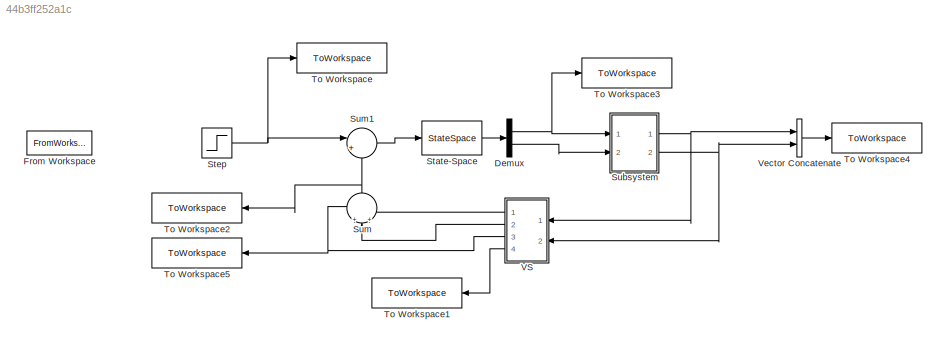
MODEL slx_44b3ff252a1c
KIND model
CONFIG AbsTol = auto
CONFIG EnableMultiTasking = off
CONFIG FixedStep = auto
CONFIG MaxStep = auto
CONFIG MinStep = auto
CONFIG RelTol = 1e-3
CONFIG SampleTimeConstraint = Unconstrained
CONFIG SolverName = VariableStepAuto
CONFIG StartTime = 0.0
CONFIG StopTime = T
BLOCK [Demux] Demux
  Outputs = 2
  Ports = [1, 2]
BLOCK [FromWorkspace] From Workspace
  Commented = on
  SampleTime = 0.0001
  VariableName = disturb
BLOCK [StateSpace] State-Space
  A = [0 1; -b -a]
  B = [0; 1]
  C = eye(2)
  D = zeros(2, 1)
  InitialCondition = [0 0]
  Ports = [1, 1]
BLOCK [Step] Step
  After = dist
  SampleTime = ss_st
  ZeroCross = off
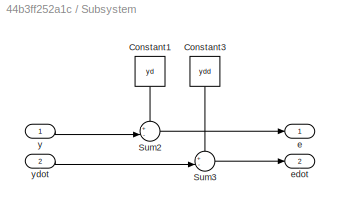
BLOCK [SubSystem] Subsystem
  Ports = [2, 2]
  RequestExecContextInheritance = off
BLOCK [Constant] Subsystem/Constant1
  NameLocation = left
  Value = yd
BLOCK [Constant] Subsystem/Constant3
  NameLocation = left
  Value = ydd
BLOCK [Sum] Subsystem/Sum2
  Inputs = +-|
  Ports = [2, 1]
BLOCK [Sum] Subsystem/Sum3
  Inputs = +-|
  Ports = [2, 1]
BLOCK [Outport] Subsystem/e
BLOCK [Outport] Subsystem/edot
  Port = 2
BLOCK [Inport] Subsystem/y
BLOCK [Inport] Subsystem/ydot
  Port = 2
BLOCK [Sum] Sum
  Inputs = +|+|+
  NameLocation = right
  Ports = [3, 1]
BLOCK [Sum] Sum1
  Inputs = |++
  Ports = [2, 1]
BLOCK [ToWorkspace] To Workspace
  FixptAsFi = on
  MaxDataPoints = inf
  Ports = [1]
  SampleTime = -1
  SaveFormat = Timeseries
  VariableName = disturbance
BLOCK [ToWorkspace] To Workspace1
  FixptAsFi = on
  MaxDataPoints = inf
  NameLocation = top
  Ports = [1]
  SampleTime = -1
  SaveFormat = Timeseries
  VariableName = ss
BLOCK [ToWorkspace] To Workspace2
  FixptAsFi = on
  MaxDataPoints = inf
  NameLocation = top
  Ports = [1]
  SampleTime = -1
  SaveFormat = Timeseries
  VariableName = input
BLOCK [ToWorkspace] To Workspace3
  FixptAsFi = on
  MaxDataPoints = inf
  Ports = [1]
  SampleTime = -1
  SaveFormat = Timeseries
  VariableName = y
BLOCK [ToWorkspace] To Workspace4
  FixptAsFi = on
  MaxDataPoints = inf
  Ports = [1]
  SampleTime = -1
  SaveFormat = Timeseries
  VariableName = error
BLOCK [ToWorkspace] To Workspace5
  FixptAsFi = on
  MaxDataPoints = inf
  NameLocation = top
  Ports = [1]
  SampleTime = -1
  SaveFormat = Timeseries
  VariableName = i_term
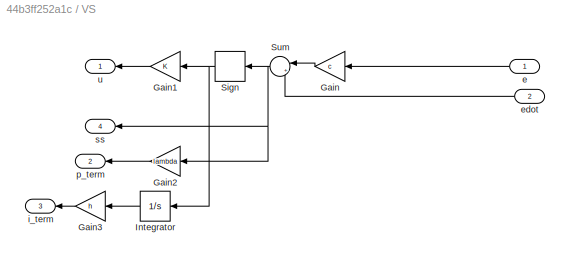
BLOCK [SubSystem] VS
  NameLocation = top
  Ports = [2, 4]
  RequestExecContextInheritance = off
BLOCK [Gain] VS/Gain
  Gain = c
  NameLocation = top
BLOCK [Gain] VS/Gain1
  Gain = K
  NameLocation = top
BLOCK [Gain] VS/Gain2
  Gain = lambda
  NameLocation = top
BLOCK [Gain] VS/Gain3
  Gain = h
  NameLocation = top
BLOCK [Integrator] VS/Integrator
  NameLocation = top
  Ports = [1, 1]
BLOCK [Signum] VS/Sign
  NameLocation = top
BLOCK [Sum] VS/Sum
  Inputs = |++
  NameLocation = top
  Ports = [2, 1]
BLOCK [Inport] VS/e
  NameLocation = top
BLOCK [Inport] VS/edot
  NameLocation = top
  Port = 2
BLOCK [Outport] VS/i_term
  NameLocation = top
  Port = 3
BLOCK [Outport] VS/p_term
  NameLocation = top
  Port = 2
BLOCK [Outport] VS/ss
  NameLocation = top
  Port = 4
BLOCK [Outport] VS/u
BLOCK [Concatenate] Vector Concatenate
  Ports = [2, 1]
NET Demux:1 -> Subsystem:1, To Workspace3:1
LINE Demux:2 -> Subsystem:2
LINE State-Space:1 -> Demux:1
NET Step:1 -> Sum1:1, To Workspace:1
LINE Subsystem/Constant1:1 -> Subsystem/Sum2:1
LINE Subsystem/Constant3:1 -> Subsystem/Sum3:1
LINE Subsystem/Sum2:1 -> Subsystem/e:1
LINE Subsystem/Sum3:1 -> Subsystem/edot:1
LINE Subsystem/y:1 -> Subsystem/Sum2:2
LINE Subsystem/ydot:1 -> Subsystem/Sum3:2
NET Subsystem:1 -> VS:1, Vector Concatenate:1
NET Subsystem:2 -> VS:2, Vector Concatenate:2
LINE Sum1:1 -> State-Space:1
NET Sum:1 -> Sum1:2, To Workspace2:1
LINE VS/Gain1:1 -> VS/u:1
LINE VS/Gain2:1 -> VS/p_term:1
LINE VS/Gain3:1 -> VS/i_term:1
LINE VS/Gain:1 -> VS/Sum:1
LINE VS/Integrator:1 -> VS/Gain3:1
NET VS/Sign:1 -> VS/Gain1:1, VS/Integrator:1
NET VS/Sum:1 -> VS/Gain2:1, VS/Sign:1, VS/ss:1
LINE VS/e:1 -> VS/Gain:1
LINE VS/edot:1 -> VS/Sum:2
LINE VS:1 -> Sum:3
LINE VS:2 -> Sum:2
NET VS:3 -> Sum:1, To Workspace5:1
LINE VS:4 -> To Workspace1:1
LINE Vector Concatenate:1 -> To Workspace4:1
note: NET lines group one-source signal fan-out (src -> all destinations, sorted); 1:1 wires keep LINE
